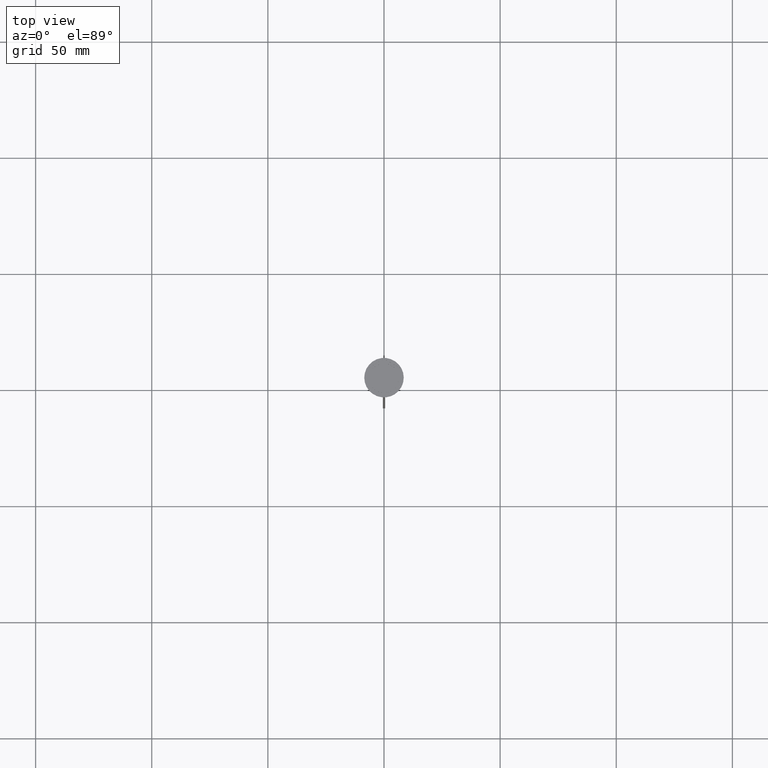
[diagram: clean part render]
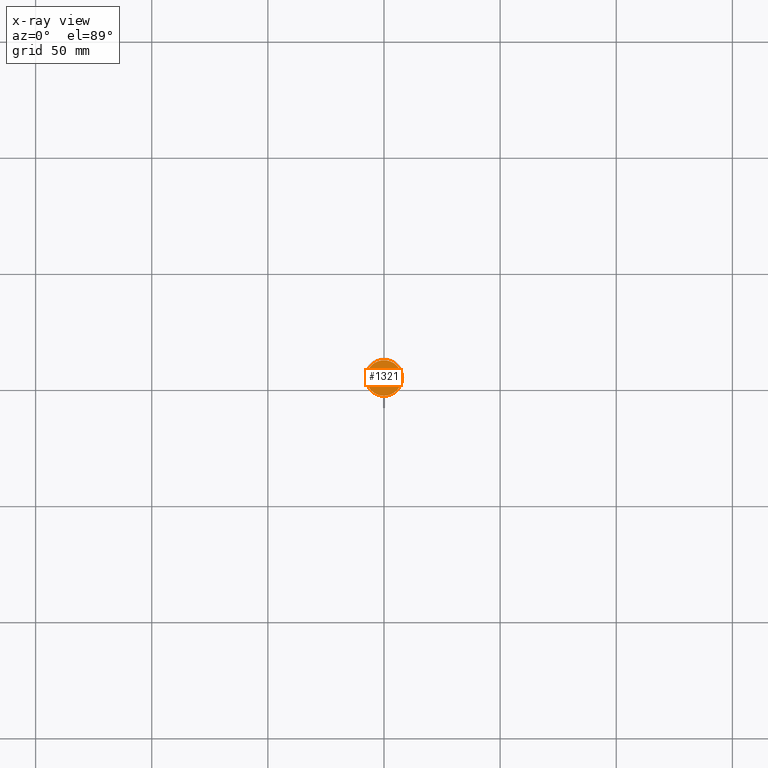
[diagram: x-ray — body ghosted, one internal face saturated and labeled with its STEP entity id]
A machine part, top view, then the same camera in x-ray: the body is ghosted and one INTERNAL B-rep face — a face not visible from any outside direction — is saturated and labeled: STEP entity #1321.
In plain terms, the highlighted planar face has unit normal (0, 0, -1).
Its self-contained STEP definition (entity closure, byte-faithful):
#5 = CARTESIAN_POINT ( 'NONE',  ( 0.000000000000000000, 0.000000000000000000, -12.00000000000000000 ) ) ;
#113 = DIRECTION ( 'NONE',  ( -1.000000000000000000, 0.000000000000000000, 0.000000000000000000 ) ) ;
#235 = AXIS2_PLACEMENT_3D ( 'NONE', #5, #2063, #575 ) ;
#257 = EDGE_CURVE ( 'NONE', #613, #1698, #959, .T. ) ;
#308 = CARTESIAN_POINT ( 'NONE',  ( 0.000000000000000000, 0.000000000000000000, -12.00000000000000000 ) ) ;
#490 = DIRECTION ( 'NONE',  ( -1.000000000000000000, 0.000000000000000000, -0.000000000000000000 ) ) ;
#575 = DIRECTION ( 'NONE',  ( -1.000000000000000000, 0.000000000000000000, 0.000000000000000000 ) ) ;
#587 = ORIENTED_EDGE ( 'NONE', *, *, #257, .T. ) ;
#613 = VERTEX_POINT ( 'NONE', #1632 ) ;
#714 = FACE_OUTER_BOUND ( 'NONE', #1522, .T. ) ;
#959 = CIRCLE ( 'NONE', #2229, 7.700000000000001954 ) ;
#1067 = PLANE ( 'NONE',  #1965 ) ;
#1126 = ORIENTED_EDGE ( 'NONE', *, *, #2241, .T. ) ;
#1277 = DIRECTION ( 'NONE',  ( 0.000000000000000000, 0.000000000000000000, -1.000000000000000000 ) ) ;
#1321 = ADVANCED_FACE ( 'NONE', ( #714 ), #1067, .F. ) ;
#1447 = CARTESIAN_POINT ( 'NONE',  ( 7.700000000000001954, 9.613477373306725302E-16, -12.00000000000000000 ) ) ;
#1522 = EDGE_LOOP ( 'NONE', ( #587, #1126 ) ) ;
#1632 = CARTESIAN_POINT ( 'NONE',  ( -7.700000000000001954, 0.000000000000000000, -12.00000000000000000 ) ) ;
#1698 = VERTEX_POINT ( 'NONE', #1447 ) ;
#1779 = DIRECTION ( 'NONE',  ( -0.000000000000000000, -0.000000000000000000, 1.000000000000000000 ) ) ;
#1805 = CARTESIAN_POINT ( 'NONE',  ( 0.000000000000000000, 0.000000000000000000, -12.00000000000000000 ) ) ;
#1965 = AXIS2_PLACEMENT_3D ( 'NONE', #1805, #1277, #490 ) ;
#2063 = DIRECTION ( 'NONE',  ( -0.000000000000000000, -0.000000000000000000, 1.000000000000000000 ) ) ;
#2229 = AXIS2_PLACEMENT_3D ( 'NONE', #308, #1779, #113 ) ;
#2241 = EDGE_CURVE ( 'NONE', #1698, #613, #2315, .T. ) ;
#2315 = CIRCLE ( 'NONE', #235, 7.700000000000001954 ) ;